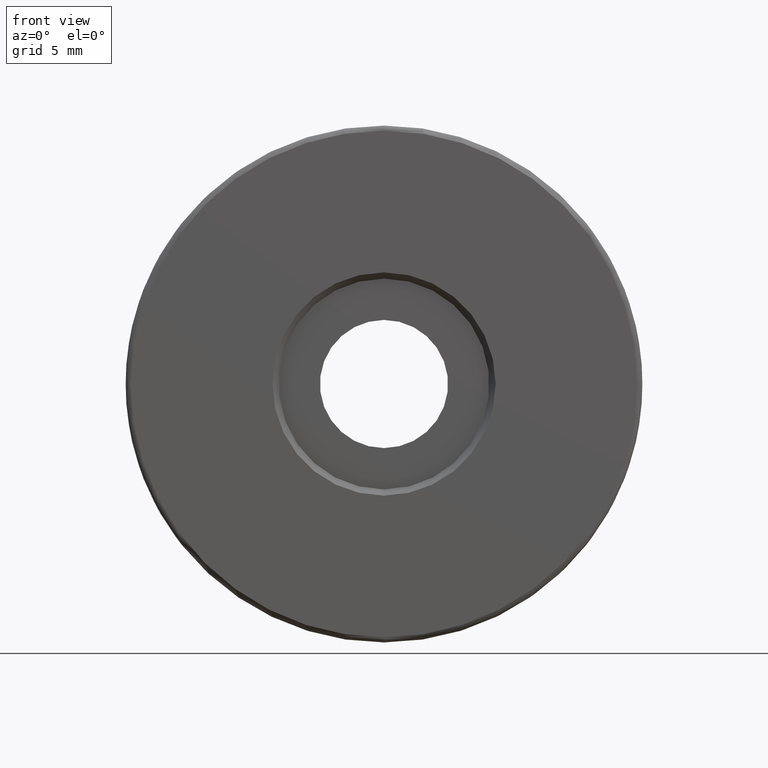
[diagram: clean part render]
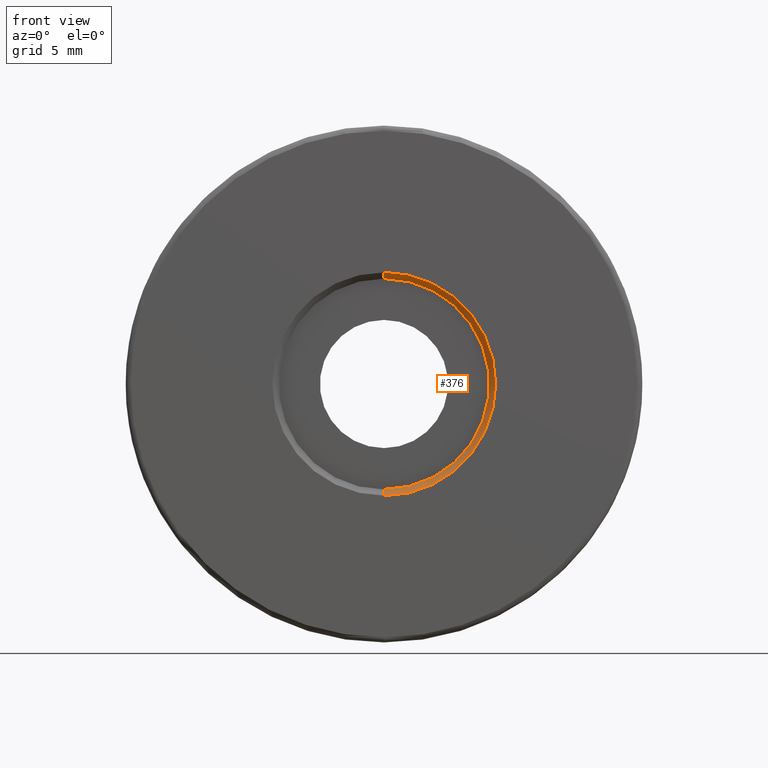
[diagram: same view with one face highlighted and labeled with its STEP entity id]
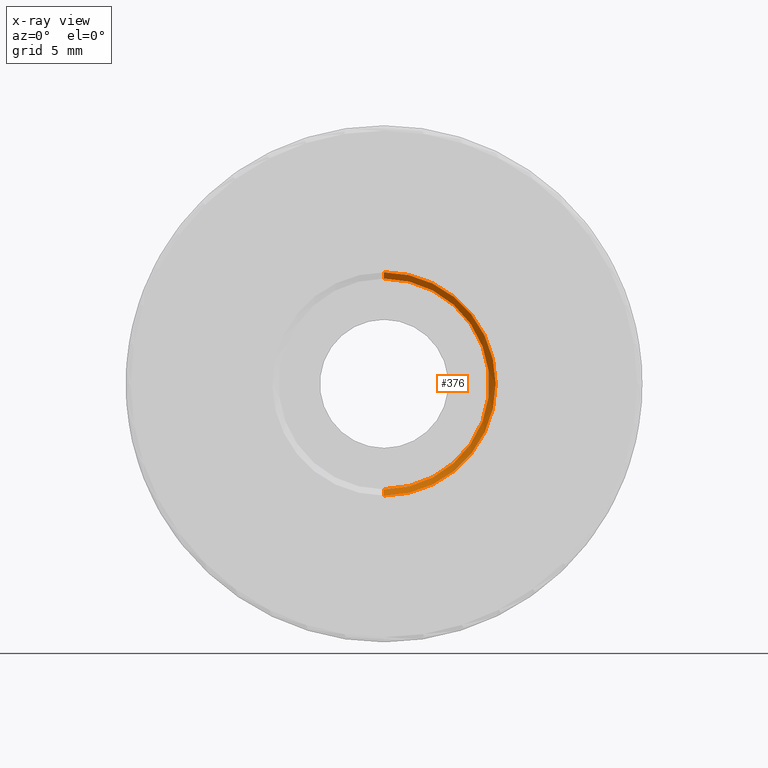
[diagram: x-ray of the same camera — body ghosted, the highlighted face saturated]
A machine part, front view. The second image highlights one B-rep face of the part: STEP entity #376.
The next image is the same camera in x-ray: the body ghosted, the highlighted face saturated — about 0% of this face is hidden behind the body in this view.
In plain terms, the highlighted conical surface has half-angle 45 deg.
Its self-contained STEP definition (entity closure, byte-faithful):
#9 = VERTEX_POINT ( 'NONE', #408 ) ;
#21 = DIRECTION ( 'NONE',  ( 0.0000000000000000000, -0.7071067811865505703, -0.7071067811865444641 ) ) ;
#34 = ORIENTED_EDGE ( 'NONE', *, *, #182, .T. ) ;
#37 = DIRECTION ( 'NONE',  ( 0.0000000000000000000, 0.0000000000000000000, 1.000000000000000000 ) ) ;
#38 = ORIENTED_EDGE ( 'NONE', *, *, #319, .T. ) ;
#60 = LINE ( 'NONE', #491, #312 ) ;
#62 = AXIS2_PLACEMENT_3D ( 'NONE', #422, #384, #37 ) ;
#92 = ORIENTED_EDGE ( 'NONE', *, *, #119, .F. ) ;
#119 = EDGE_CURVE ( 'NONE', #463, #166, #365, .T. ) ;
#124 = LINE ( 'NONE', #314, #483 ) ;
#137 = CARTESIAN_POINT ( 'NONE',  ( -4.682026255059964726, -2.344975976998274980, 25.00000000000000000 ) ) ;
#142 = CARTESIAN_POINT ( 'NONE',  ( -4.682026255059964726, -2.344975976998274980, 19.59999999999999787 ) ) ;
#162 = CARTESIAN_POINT ( 'NONE',  ( -4.682026255059963837, -2.344975976998274980, 30.40000000000000213 ) ) ;
#166 = VERTEX_POINT ( 'NONE', #142 ) ;
#182 = EDGE_CURVE ( 'NONE', #308, #166, #60, .T. ) ;
#186 = EDGE_LOOP ( 'NONE', ( #276, #38, #34, #92 ) ) ;
#254 = CONICAL_SURFACE ( 'NONE', #381, 5.400000000000002132, 0.7853981633974439491 ) ;
#273 = CARTESIAN_POINT ( 'NONE',  ( -4.682026255059964726, -2.344975976998274980, 25.00000000000000000 ) ) ;
#276 = ORIENTED_EDGE ( 'NONE', *, *, #467, .F. ) ;
#277 = CIRCLE ( 'NONE', #62, 5.100000000000000533 ) ;
#308 = VERTEX_POINT ( 'NONE', #470 ) ;
#312 = VECTOR ( 'NONE', #21, 1000.000000000000114 ) ;
#314 = CARTESIAN_POINT ( 'NONE',  ( -4.682026255059963837, -2.344975976998274980, 30.40000000000000213 ) ) ;
#319 = EDGE_CURVE ( 'NONE', #9, #308, #277, .T. ) ;
#333 = DIRECTION ( 'NONE',  ( 0.0000000000000000000, 1.000000000000000000, 0.0000000000000000000 ) ) ;
#357 = DIRECTION ( 'NONE',  ( 8.659560562354895880E-17, -0.7071067811865505703, 0.7071067811865444641 ) ) ;
#365 = CIRCLE ( 'NONE', #421, 5.400000000000002132 ) ;
#376 = ADVANCED_FACE ( 'NONE', ( #482 ), #254, .F. ) ;
#381 = AXIS2_PLACEMENT_3D ( 'NONE', #273, #477, #480 ) ;
#384 = DIRECTION ( 'NONE',  ( -0.0000000000000000000, 1.000000000000000000, -0.0000000000000000000 ) ) ;
#408 = CARTESIAN_POINT ( 'NONE',  ( -4.682026255059963837, -2.044975976998274714, 30.10000000000000142 ) ) ;
#421 = AXIS2_PLACEMENT_3D ( 'NONE', #137, #333, #456 ) ;
#422 = CARTESIAN_POINT ( 'NONE',  ( -4.682026255059964726, -2.044975976998274714, 25.00000000000000000 ) ) ;
#456 = DIRECTION ( 'NONE',  ( 0.0000000000000000000, 0.0000000000000000000, 1.000000000000000000 ) ) ;
#463 = VERTEX_POINT ( 'NONE', #162 ) ;
#467 = EDGE_CURVE ( 'NONE', #9, #463, #124, .T. ) ;
#470 = CARTESIAN_POINT ( 'NONE',  ( -4.682026255059964726, -2.044975976998274714, 19.90000000000000213 ) ) ;
#477 = DIRECTION ( 'NONE',  ( -0.0000000000000000000, -1.000000000000000000, -0.0000000000000000000 ) ) ;
#480 = DIRECTION ( 'NONE',  ( 0.0000000000000000000, 0.0000000000000000000, -1.000000000000000000 ) ) ;
#482 = FACE_OUTER_BOUND ( 'NONE', #186, .T. ) ;
#483 = VECTOR ( 'NONE', #357, 1000.000000000000114 ) ;
#491 = CARTESIAN_POINT ( 'NONE',  ( -4.682026255059964726, -2.344975976998274980, 19.59999999999999787 ) ) ;